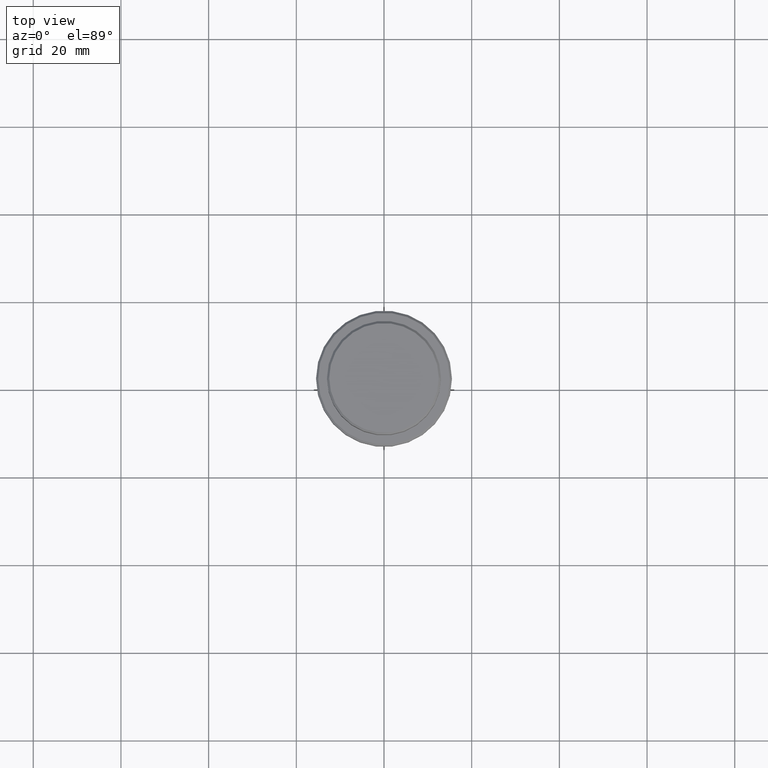
[diagram: clean part render]
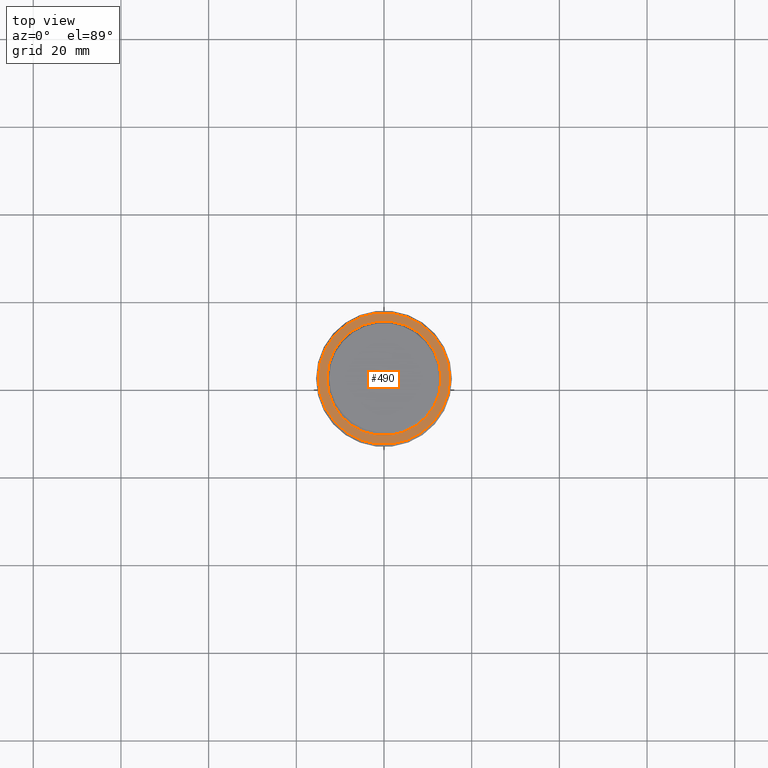
[diagram: same view with one face highlighted and labeled with its STEP entity id]
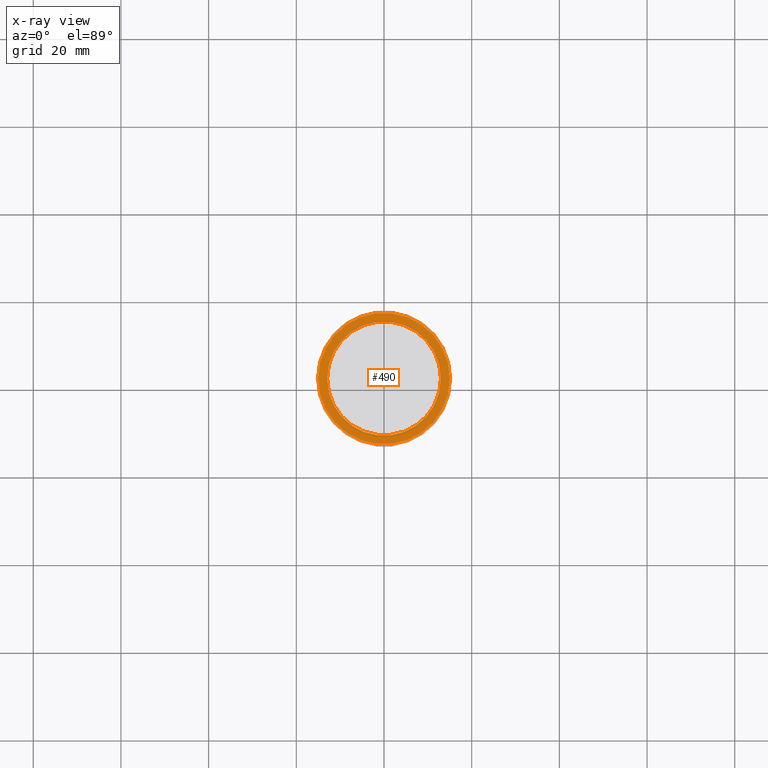
[diagram: x-ray of the same camera — body ghosted, the highlighted face saturated]
A machine part, top view. The second image highlights one B-rep face of the part: STEP entity #490.
The next image is the same camera in x-ray: the body ghosted, the highlighted face saturated — about 0% of this face is hidden behind the body in this view.
In plain terms, the highlighted planar face has unit normal (0, -0, 1).
Its self-contained STEP definition (entity closure, byte-faithful):
#8 = CARTESIAN_POINT ( 'NONE',  ( 0.000000000000000000, 0.000000000000000000, -9.000000000000000000 ) ) ;
#58 = CARTESIAN_POINT ( 'NONE',  ( 0.000000000000000000, 0.000000000000000000, -9.000000000000000000 ) ) ;
#65 = EDGE_CURVE ( 'NONE', #999, #153, #901, .T. ) ;
#82 = FACE_BOUND ( 'NONE', #588, .T. ) ;
#84 = DIRECTION ( 'NONE',  ( 1.000000000000000000, 0.000000000000000000, 0.000000000000000000 ) ) ;
#153 = VERTEX_POINT ( 'NONE', #259 ) ;
#259 = CARTESIAN_POINT ( 'NONE',  ( 15.00000000000001421, 1.867586368699714559E-15, -9.000000000000000000 ) ) ;
#266 = CARTESIAN_POINT ( 'NONE',  ( 0.000000000000000000, 0.000000000000000000, -9.000000000000000000 ) ) ;
#278 = VERTEX_POINT ( 'NONE', #1151 ) ;
#296 = AXIS2_PLACEMENT_3D ( 'NONE', #867, #409, #1087 ) ;
#336 = CARTESIAN_POINT ( 'NONE',  ( -15.00000000000001421, 0.000000000000000000, -9.000000000000000000 ) ) ;
#350 = DIRECTION ( 'NONE',  ( 1.000000000000000000, 0.000000000000000000, 0.000000000000000000 ) ) ;
#360 = EDGE_CURVE ( 'NONE', #1323, #278, #1182, .T. ) ;
#408 = DIRECTION ( 'NONE',  ( -0.000000000000000000, -0.000000000000000000, 1.000000000000000000 ) ) ;
#409 = DIRECTION ( 'NONE',  ( 0.000000000000000000, 0.000000000000000000, -1.000000000000000000 ) ) ;
#422 = ORIENTED_EDGE ( 'NONE', *, *, #65, .T. ) ;
#425 = DIRECTION ( 'NONE',  ( 0.000000000000000000, 0.000000000000000000, -1.000000000000000000 ) ) ;
#430 = DIRECTION ( 'NONE',  ( 0.000000000000000000, -0.000000000000000000, 1.000000000000000000 ) ) ;
#435 = EDGE_LOOP ( 'NONE', ( #422, #1002 ) ) ;
#462 = CIRCLE ( 'NONE', #296, 12.99999999999999467 ) ;
#490 = ADVANCED_FACE ( 'NONE', ( #868, #82 ), #659, .T. ) ;
#511 = DIRECTION ( 'NONE',  ( 1.000000000000000000, 0.000000000000000000, 0.000000000000000000 ) ) ;
#550 = AXIS2_PLACEMENT_3D ( 'NONE', #8, #1213, #350 ) ;
#573 = CIRCLE ( 'NONE', #550, 15.00000000000001421 ) ;
#588 = EDGE_LOOP ( 'NONE', ( #1049, #844 ) ) ;
#615 = EDGE_CURVE ( 'NONE', #153, #999, #573, .T. ) ;
#644 = AXIS2_PLACEMENT_3D ( 'NONE', #983, #430, #968 ) ;
#659 = PLANE ( 'NONE',  #644 ) ;
#754 = AXIS2_PLACEMENT_3D ( 'NONE', #266, #425, #84 ) ;
#844 = ORIENTED_EDGE ( 'NONE', *, *, #360, .T. ) ;
#862 = EDGE_CURVE ( 'NONE', #278, #1323, #462, .T. ) ;
#867 = CARTESIAN_POINT ( 'NONE',  ( 0.000000000000000000, 0.000000000000000000, -9.000000000000000000 ) ) ;
#868 = FACE_OUTER_BOUND ( 'NONE', #435, .T. ) ;
#901 = CIRCLE ( 'NONE', #1221, 15.00000000000001421 ) ;
#968 = DIRECTION ( 'NONE',  ( 1.000000000000000000, 0.000000000000000000, 0.000000000000000000 ) ) ;
#983 = CARTESIAN_POINT ( 'NONE',  ( 0.000000000000000000, 12.49999999999999289, -9.000000000000000000 ) ) ;
#999 = VERTEX_POINT ( 'NONE', #336 ) ;
#1002 = ORIENTED_EDGE ( 'NONE', *, *, #615, .T. ) ;
#1049 = ORIENTED_EDGE ( 'NONE', *, *, #862, .T. ) ;
#1070 = CARTESIAN_POINT ( 'NONE',  ( -12.99999999999999467, 1.592040838891558504E-15, -9.000000000000000000 ) ) ;
#1087 = DIRECTION ( 'NONE',  ( 1.000000000000000000, 0.000000000000000000, 0.000000000000000000 ) ) ;
#1151 = CARTESIAN_POINT ( 'NONE',  ( 12.99999999999999467, 0.000000000000000000, -9.000000000000000000 ) ) ;
#1182 = CIRCLE ( 'NONE', #754, 12.99999999999999467 ) ;
#1213 = DIRECTION ( 'NONE',  ( -0.000000000000000000, -0.000000000000000000, 1.000000000000000000 ) ) ;
#1221 = AXIS2_PLACEMENT_3D ( 'NONE', #58, #408, #511 ) ;
#1323 = VERTEX_POINT ( 'NONE', #1070 ) ;